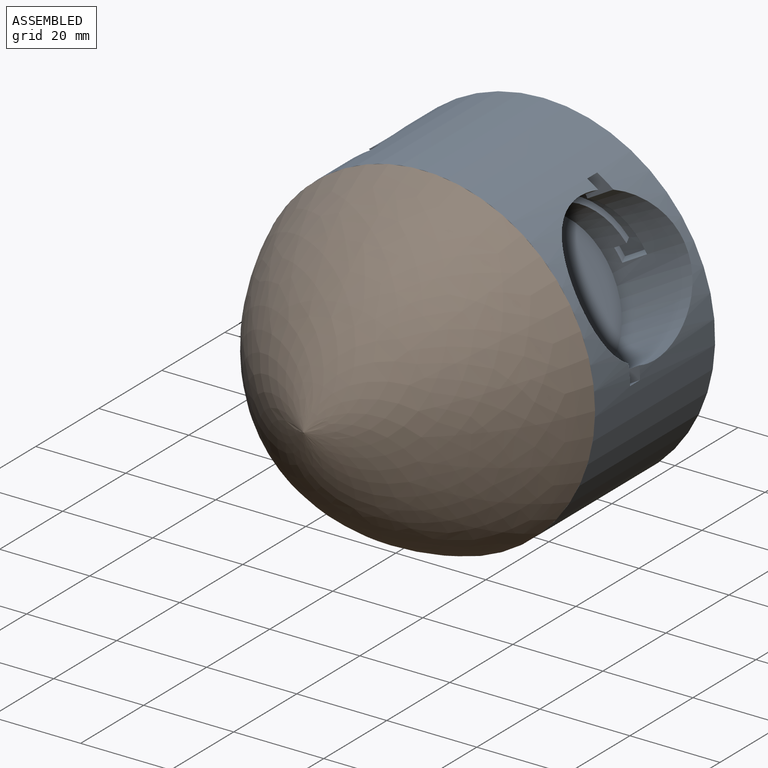
[diagram: assembled view]
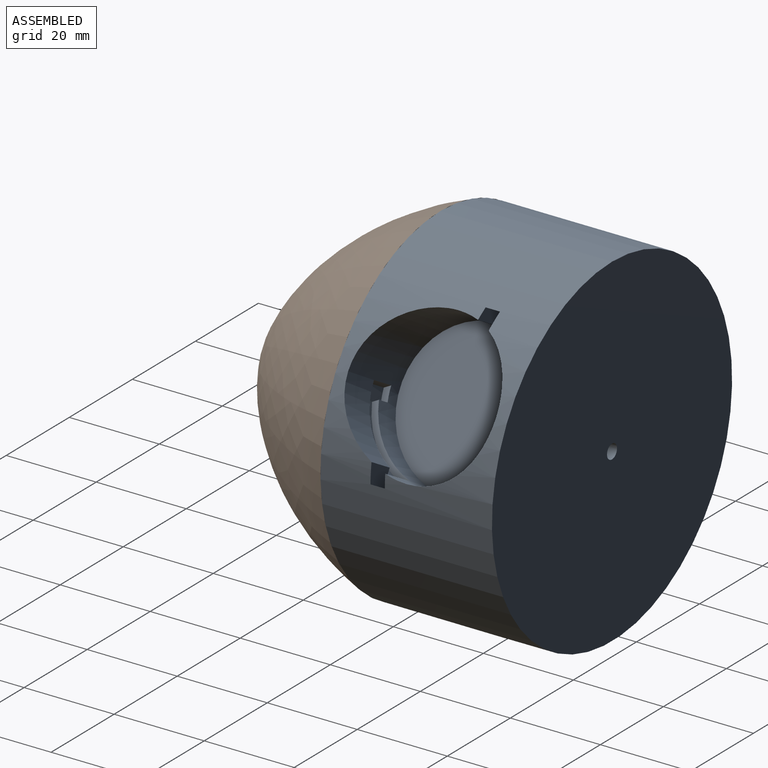
[diagram: assembled view, second angle]
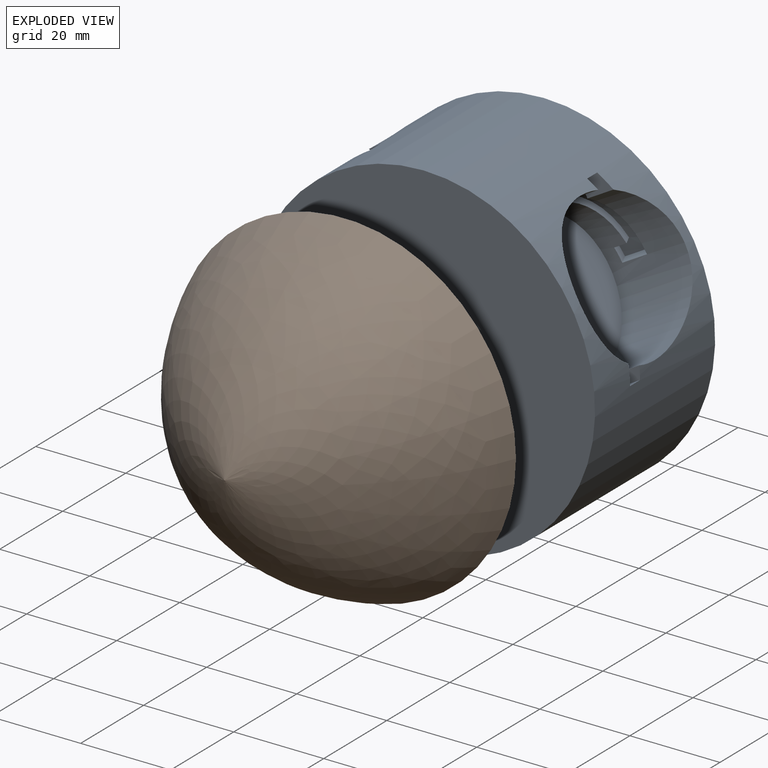
[diagram: exploded view]
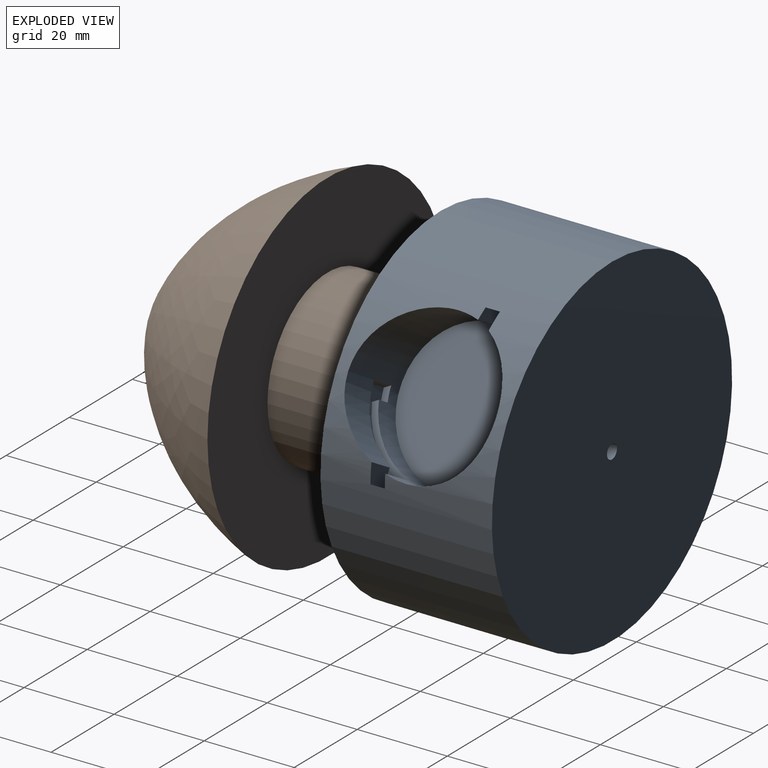
[diagram: exploded view, second angle]
ASSEMBLY  parts=2 mates=2
PART A: 66 faces, bbox 82.5x38.1x76.2 mm
  f0: plane 13.2x12.73mm, normal (0.87,0,-0.5), area 31.6mm2, adj f45,f55,f56,f57,f59,f61
  f1: cylinder r=38.1mm len=76.2mm, axis (0,-1,0), area 6418.9mm2, adj f7,f8,f9,f11,f12,f13,f19,f20
  f2: plane 13.2x12.73mm, normal (0.87,0,-0.5), area 31.6mm2, adj f45,f47,f48,f49,f51,f53
  f3: plane 13.2x12.73mm, normal (-0.87,0,-0.5), area 31.6mm2, adj f27,f37,f38,f39,f41,f43
  f4: plane 13.2x12.73mm, normal (-0.87,0,-0.5), area 31.6mm2, adj f27,f29,f30,f31,f33,f35
  f5: plane 15.24x12.73mm, normal (0,0,1), area 31.6mm2, adj f9,f19,f20,f21,f23,f25
  f6: plane 15.24x12.73mm, normal (0,0,1), area 31.6mm2, adj f9,f11,f12,f13,f15,f17
  f7: plane 76.2x76.2mm, normal (0,1,0), area 3768.6mm2, adj f1,f63
  f8: plane 76.2x76.2mm, normal (0,-1,0), area 4552.5mm2, adj f1,f65
  f9: cylinder r=16.51mm len=33.02mm, axis (0,0,1), area 1585.3mm2, adj f1,f5,f6,f10,f12,f13,f14,f16
  f10: plane 33.02x33.02mm, normal (0,0,1), area 856.3mm2, adj f9
  f11: plane 7.95x3.18mm, normal (1,0,0), area 25.3mm2, adj f1,f6,f12,f13
  f12: plane 9.27x2.61mm, normal (0,1,0), area 22.5mm2, adj f1,f6,f9,f11
  f13: plane 9.84x3.94mm, normal (0,-1,0), area 30.2mm2, adj f1,f6,f9,f11,f14,f15
  f14: plane 16.06x9.96mm, normal (0,0,-1), area 25.9mm2, adj f9,f13,f15,f16
  f15: cylinder r=17.92mm len=15.3mm, axis (0,0,1), area 70.8mm2, adj f6,f13,f14,f16,f17,f18
  f16: plane 6.35x1.39mm, normal (-0.88,-0.48,0), area 10.1mm2, adj f9,f14,f15,f18
  f17: plane 3.18x1.29mm, normal (0.88,0.48,0), area 4.7mm2, adj f6,f9,f15,f18
  f18: plane 3.88x1.7mm, normal (0,0,1), area 4.5mm2, adj f9,f15,f16,f17
  f19: plane 7.95x3.18mm, normal (-1,0,0), area 25.3mm2, adj f1,f5,f20,f21
  f20: plane 9.27x2.61mm, normal (0,-1,0), area 22.5mm2, adj f1,f5,f9,f19
  f21: plane 9.84x3.94mm, normal (0,1,0), area 30.2mm2, adj f1,f5,f9,f19,f22,f23
  f22: plane 16.06x9.96mm, normal (0,0,-1), area 25.9mm2, adj f9,f21,f23,f24
  f23: cylinder r=17.92mm len=15.3mm, axis (0,0,1), area 70.8mm2, adj f5,f21,f22,f24,f25,f26
  f24: plane 6.35x1.39mm, normal (0.88,0.48,0), area 10.1mm2, adj f9,f22,f23,f26
  f25: plane 3.18x1.29mm, normal (-0.88,-0.48,0), area 4.7mm2, adj f5,f9,f23,f26
  f26: plane 3.88x1.7mm, normal (0,0,1), area 4.5mm2, adj f9,f23,f24,f25
  f27: cylinder r=16.51mm len=38.12mm, axis (-0.87,0,-0.5), area 1585.3mm2, adj f1,f3,f4,f28,f30,f31,f32,f34
  f28: plane 33.02x28.6mm, normal (-0.87,0,-0.5), area 856.3mm2, adj f27
  f29: plane 6.89x3.98mm, normal (-0.5,0,0.87), area 25.3mm2, adj f1,f4,f30,f31
  f30: plane 9.33x6.23mm, normal (0,1,0), area 22.5mm2, adj f1,f4,f27,f29
  f31: plane 10.49x6.01mm, normal (0,-1,0), area 30.2mm2, adj f1,f4,f27,f29,f32,f33
  f32: plane 13.91x9.96mm, normal (0.87,0,0.5), area 25.9mm2, adj f27,f31,f33,f34
  f33: cylinder r=17.92mm len=16.43mm, axis (-0.87,0,-0.5), area 70.8mm2, adj f4,f31,f32,f34,f35,f36
  f34: plane 5.88x3.84mm, normal (0.44,-0.48,-0.76), area 10.1mm2, adj f27,f32,f33,f36
  f35: plane 3.1x2.2mm, normal (-0.44,0.48,0.76), area 4.7mm2, adj f4,f27,f33,f36
  f36: plane 3.36x1.94mm, normal (-0.87,0,-0.5), area 4.5mm2, adj f27,f33,f34,f35
  f37: plane 6.89x3.98mm, normal (0.5,0,-0.87), area 25.3mm2, adj f1,f3,f38,f39
  f38: plane 8.19x6.89mm, normal (0,-1,0), area 22.5mm2, adj f1,f3,f27,f37
  f39: plane 8.33x8.06mm, normal (0,1,0), area 30.2mm2, adj f1,f3,f27,f37,f40,f41
  f40: plane 13.91x9.96mm, normal (0.87,0,0.5), area 25.9mm2, adj f27,f39,f41,f42
  f41: cylinder r=17.92mm len=16.43mm, axis (-0.87,0,-0.5), area 70.8mm2, adj f3,f39,f40,f42,f43,f44
  f42: plane 5.88x3.84mm, normal (-0.44,0.48,0.76), area 10.1mm2, adj f27,f40,f41,f44
  f43: plane 3.1x2.2mm, normal (0.44,-0.48,-0.76), area 4.7mm2, adj f3,f27,f41,f44
  f44: plane 3.36x1.94mm, normal (-0.87,0,-0.5), area 4.5mm2, adj f27,f41,f42,f43
  f45: cylinder r=16.51mm len=38.12mm, axis (0.87,0,-0.5), area 1585.3mm2, adj f0,f1,f2,f46,f48,f49,f50,f52
  f46: plane 33.02x28.6mm, normal (0.87,0,-0.5), area 856.3mm2, adj f45
  f47: plane 6.89x3.98mm, normal (-0.5,0,-0.87), area 25.3mm2, adj f1,f2,f48,f49
  f48: plane 8.19x6.89mm, normal (0,1,0), area 22.5mm2, adj f1,f2,f45,f47
  f49: plane 8.33x8.06mm, normal (0,-1,0), area 30.2mm2, adj f1,f2,f45,f47,f50,f51
  f50: plane 13.91x9.96mm, normal (-0.87,0,0.5), area 25.9mm2, adj f45,f49,f51,f52
  f51: cylinder r=17.92mm len=16.43mm, axis (0.87,0,-0.5), area 70.8mm2, adj f2,f49,f50,f52,f53,f54
  f52: plane 5.88x3.84mm, normal (0.44,-0.48,0.76), area 10.1mm2, adj f45,f50,f51,f54
  f53: plane 3.1x2.2mm, normal (-0.44,0.48,-0.76), area 4.7mm2, adj f2,f45,f51,f54
  f54: plane 3.36x1.94mm, normal (0.87,0,-0.5), area 4.5mm2, adj f45,f51,f52,f53
  f55: plane 6.89x3.98mm, normal (0.5,0,0.87), area 25.3mm2, adj f0,f1,f56,f57
  f56: plane 9.33x6.23mm, normal (0,-1,0), area 22.5mm2, adj f0,f1,f45,f55
  f57: plane 10.49x6.01mm, normal (0,1,0), area 30.2mm2, adj f0,f1,f45,f55,f58,f59
  f58: plane 13.91x9.96mm, normal (-0.87,0,0.5), area 25.9mm2, adj f45,f57,f59,f60
  f59: cylinder r=17.92mm len=16.43mm, axis (0.87,0,-0.5), area 70.8mm2, adj f0,f57,f58,f60,f61,f62
  f60: plane 5.88x3.84mm, normal (-0.44,0.48,-0.76), area 10.1mm2, adj f45,f58,f59,f62
  f61: plane 3.1x2.2mm, normal (0.44,-0.48,0.76), area 4.7mm2, adj f0,f45,f59,f62
  f62: plane 3.36x1.94mm, normal (0.87,0,-0.5), area 4.5mm2, adj f45,f59,f60,f61
  f63: cylinder r=15.88mm len=31.75mm, axis (0,1,0), area 1900.2mm2, adj f7,f64
  f64: plane 31.75x31.75mm, normal (0,1,0), area 783.8mm2, adj f63,f65
  f65: cylinder r=1.59mm len=19.05mm, axis (0,1,0), area 190mm2, adj f8,f64
PART B: 6 faces, bbox 76.2x76.2x57.2 mm
  f0: plane 38.1x38.1mm, normal (0,0,-1), area 1132.2mm2, adj f1,f4
  f1: cylinder r=19.05mm len=38.1mm, axis (0,0,-1), area 2280.2mm2, adj f0,f2
  f2: plane 76.2x76.2mm, normal (0,0,-1), area 3420.3mm2, adj f1,f3
  f3: revolved ~76.2x76.2mm, area 7645.8mm2, adj f2
  f4: cylinder r=1.59mm len=12.7mm, axis (0,0,-1), area 126.7mm2, adj f0,f5
  f5: plane 3.18x3.18mm, normal (0,0,-1), area 7.9mm2, adj f4
PLACE A rot(axis=(1,0,0),180deg) t=(-74.21,-0.41,-30.34)mm
PLACE B rot(axis=(1,0,0),90deg) t=(-74.21,-0.41,-30.34)mm
MATE cylindrical B.f1 <-> A.f63  axis (0,1,0) through (-74.21,-9.94,-30.34)mm
MATE planar B.f1 <-> A.f1  axis (0,1,0) through (-74.21,-19.46,-30.34)mm
